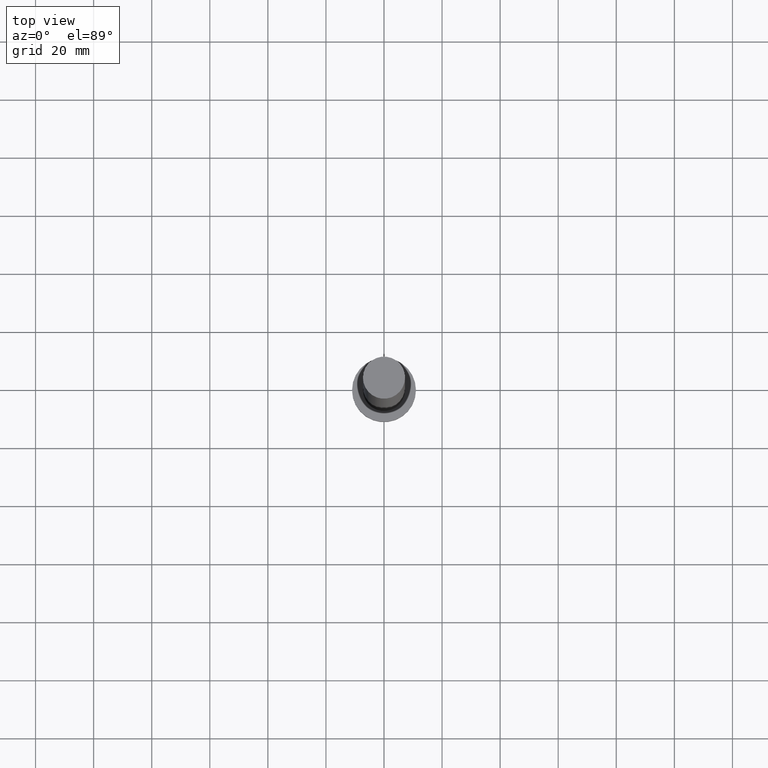
[diagram: clean part render]
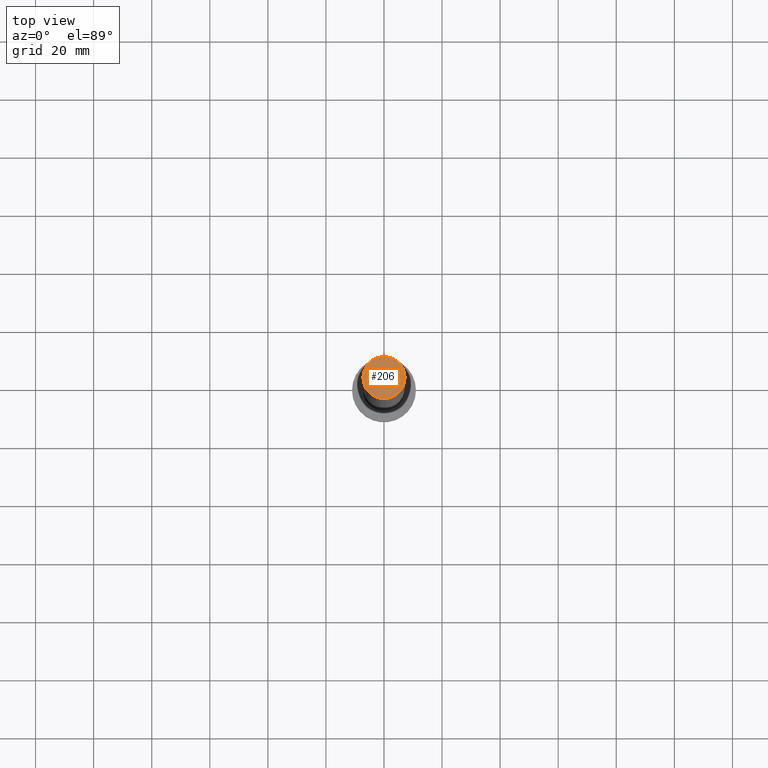
[diagram: same view with one face highlighted and labeled with its STEP entity id]
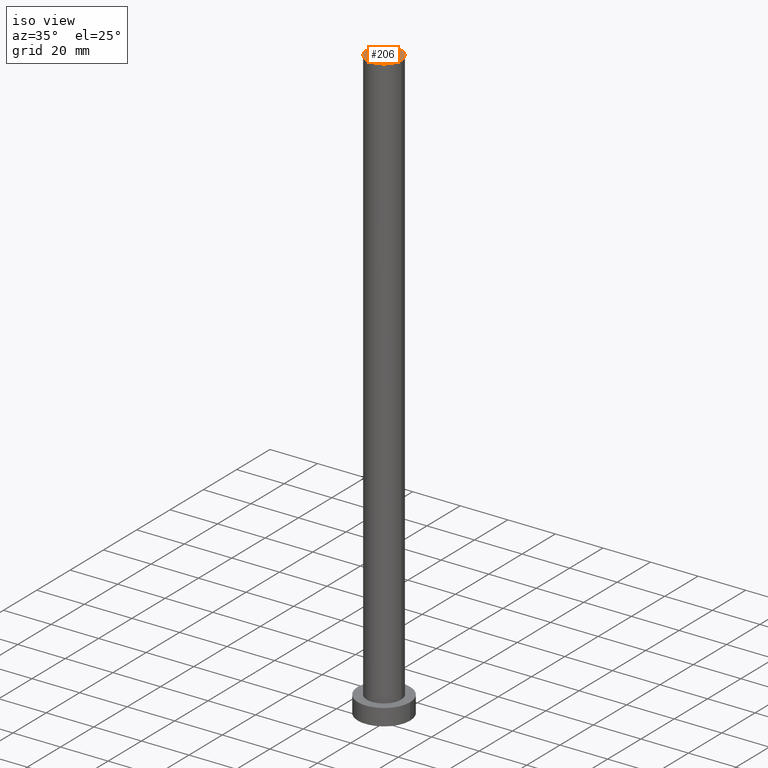
[diagram: same view with one face highlighted and labeled with its STEP entity id]
A machine part, top view. The second image highlights one B-rep face of the part: STEP entity #206.
A second angle (iso view) of the same face is appended — the face is thin or edge-on in the first view.
In plain terms, the highlighted planar face has unit normal (0, 0, 1).
Its self-contained STEP definition (entity closure, byte-faithful):
#14 = ORIENTED_EDGE ( 'NONE', *, *, #162, .T. ) ;
#36 = CIRCLE ( 'NONE', #90, 7.250000000000000000 ) ;
#40 = CIRCLE ( 'NONE', #180, 7.250000000000000000 ) ;
#48 = EDGE_LOOP ( 'NONE', ( #186, #14 ) ) ;
#50 = CARTESIAN_POINT ( 'NONE',  ( 0.000000000000000000, 0.000000000000000000, 250.0000000000000000 ) ) ;
#69 = FACE_OUTER_BOUND ( 'NONE', #48, .T. ) ;
#90 = AXIS2_PLACEMENT_3D ( 'NONE', #239, #159, #217 ) ;
#125 = EDGE_CURVE ( 'NONE', #130, #168, #40, .T. ) ;
#129 = PLANE ( 'NONE',  #169 ) ;
#130 = VERTEX_POINT ( 'NONE', #178 ) ;
#132 = DIRECTION ( 'NONE',  ( 1.000000000000000000, 0.000000000000000000, -0.000000000000000000 ) ) ;
#159 = DIRECTION ( 'NONE',  ( 0.000000000000000000, 0.000000000000000000, 1.000000000000000000 ) ) ;
#161 = CARTESIAN_POINT ( 'NONE',  ( 7.250000000000000000, 8.878689293818310074E-16, 250.0000000000000000 ) ) ;
#162 = EDGE_CURVE ( 'NONE', #168, #130, #36, .T. ) ;
#168 = VERTEX_POINT ( 'NONE', #161 ) ;
#169 = AXIS2_PLACEMENT_3D ( 'NONE', #50, #201, #132 ) ;
#175 = DIRECTION ( 'NONE',  ( 0.000000000000000000, 0.000000000000000000, 1.000000000000000000 ) ) ;
#176 = CARTESIAN_POINT ( 'NONE',  ( 0.000000000000000000, 0.000000000000000000, 250.0000000000000000 ) ) ;
#178 = CARTESIAN_POINT ( 'NONE',  ( -7.250000000000000000, 0.000000000000000000, 250.0000000000000000 ) ) ;
#180 = AXIS2_PLACEMENT_3D ( 'NONE', #176, #175, #191 ) ;
#186 = ORIENTED_EDGE ( 'NONE', *, *, #125, .T. ) ;
#191 = DIRECTION ( 'NONE',  ( 1.000000000000000000, 0.000000000000000000, 0.000000000000000000 ) ) ;
#201 = DIRECTION ( 'NONE',  ( 0.000000000000000000, 0.000000000000000000, 1.000000000000000000 ) ) ;
#206 = ADVANCED_FACE ( 'NONE', ( #69 ), #129, .T. ) ;
#217 = DIRECTION ( 'NONE',  ( 1.000000000000000000, 0.000000000000000000, 0.000000000000000000 ) ) ;
#239 = CARTESIAN_POINT ( 'NONE',  ( 0.000000000000000000, 0.000000000000000000, 250.0000000000000000 ) ) ;